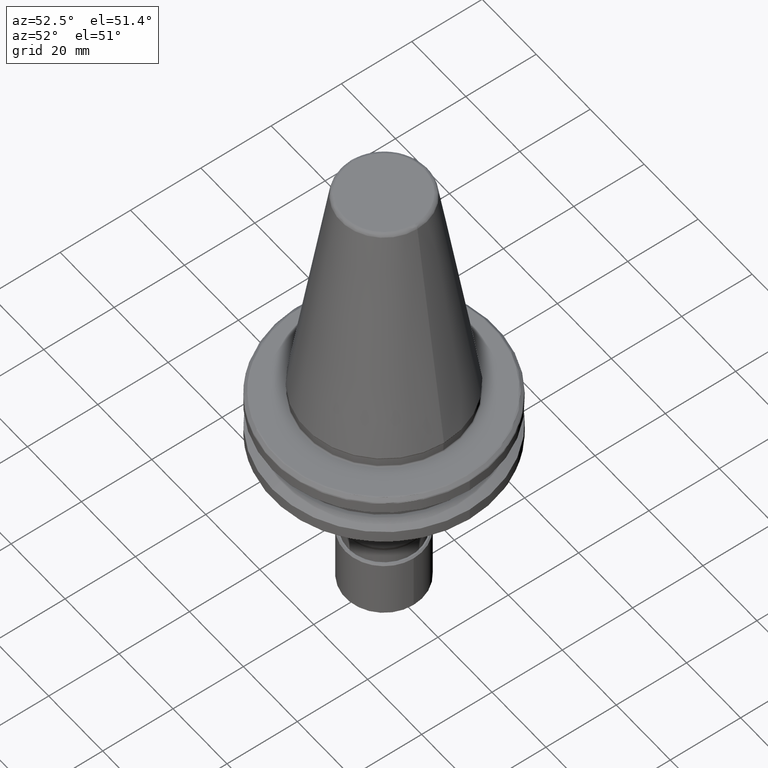
[diagram: clean part render]
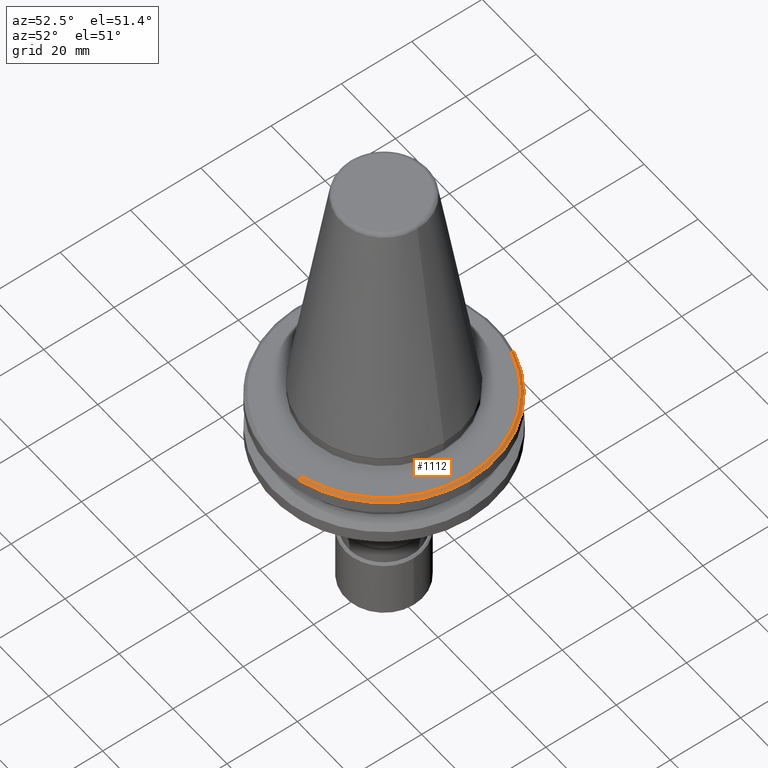
[diagram: same view with one face highlighted and labeled with its STEP entity id]
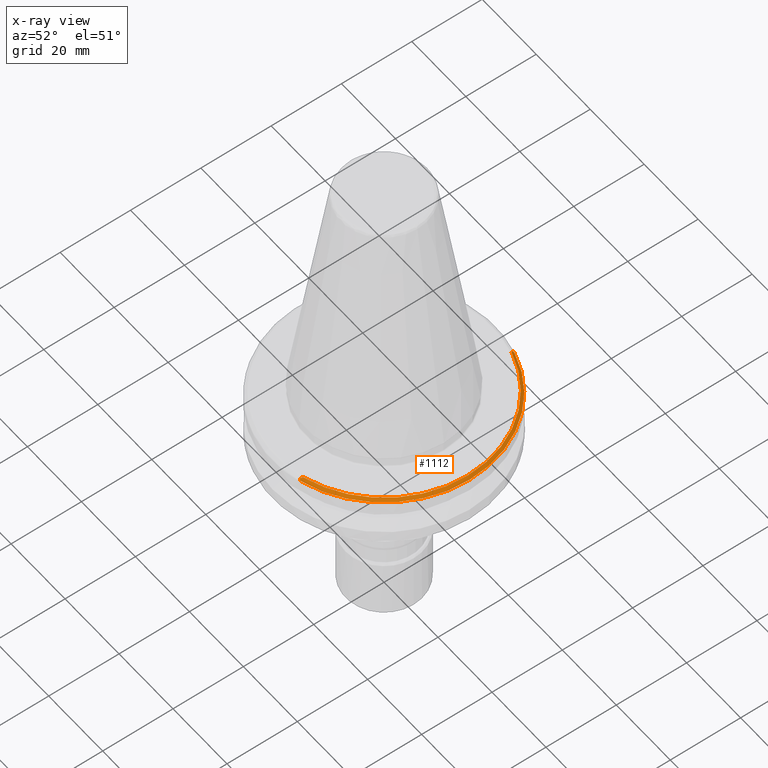
[diagram: x-ray of the same camera — body ghosted, the highlighted face saturated]
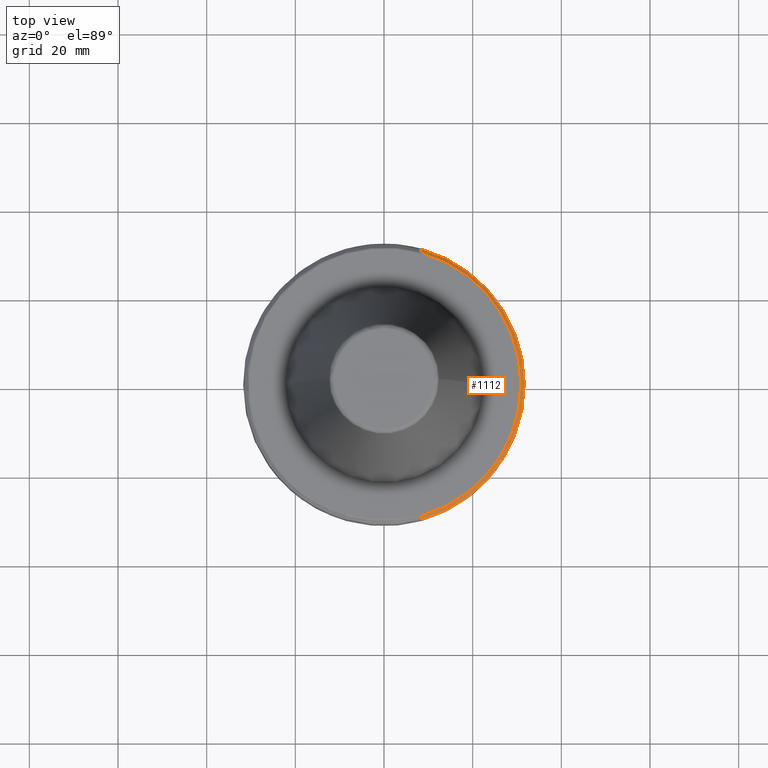
[diagram: same view with one face highlighted and labeled with its STEP entity id]
A machine part, auxiliary view. The second image highlights one B-rep face of the part: STEP entity #1112.
The next image is the same camera in x-ray: the body ghosted, the highlighted face saturated — about 0% of this face is hidden behind the body in this view.
A second angle (top view) of the same face is appended — the face is thin or edge-on in the first view.
In plain terms, the highlighted conical surface has half-angle 45 deg.
Its self-contained STEP definition (entity closure, byte-faithful):
#79 = FACE_OUTER_BOUND ( 'NONE', #3297, .T. ) ;
#170 = CARTESIAN_POINT ( 'NONE',  ( 8.632842712741323900, -29.63537456631048900, -3.317157287258676300 ) ) ;
#194 = CARTESIAN_POINT ( 'NONE',  ( 8.486468570916780900, -29.83047176759753700, -3.463531429083219300 ) ) ;
#207 = DIRECTION ( 'NONE',  ( -1.000000000000000000, 0.0000000000000000000, 3.180680361948205000E-015 ) ) ;
#275 = DIRECTION ( 'NONE',  ( 0.0000000000000000000, 0.0000000000000000000, -1.000000000000000000 ) ) ;
#321 = DIRECTION ( 'NONE',  ( 1.000000000000000000, 0.0000000000000000000, -1.264492154108390400E-016 ) ) ;
#322 = CARTESIAN_POINT ( 'NONE',  ( 8.219170450562259600, 30.18170860656226000, -3.730829549609267800 ) ) ;
#346 = VERTEX_POINT ( 'NONE', #2411 ) ;
#389 = VERTEX_POINT ( 'NONE', #2183 ) ;
#403 = ORIENTED_EDGE ( 'NONE', *, *, #2860, .F. ) ;
#410 = ORIENTED_EDGE ( 'NONE', *, *, #2192, .F. ) ;
#688 = ORIENTED_EDGE ( 'NONE', *, *, #2615, .F. ) ;
#750 = CIRCLE ( 'NONE', #1954, 31.63284271200000200 ) ;
#755 = EDGE_CURVE ( 'NONE', #2264, #2473, #2966, .T. ) ;
#806 = ORIENTED_EDGE ( 'NONE', *, *, #755, .F. ) ;
#896 = EDGE_CURVE ( 'NONE', #389, #346, #1581, .T. ) ;
#941 = CARTESIAN_POINT ( 'NONE',  ( 8.358320618073461700, 29.99959726333990800, -3.591679381926539300 ) ) ;
#1011 = EDGE_CURVE ( 'NONE', #3053, #2137, #1447, .T. ) ;
#1040 = CARTESIAN_POINT ( 'NONE',  ( 8.632842712741323900, 29.63537456631048900, -3.317157287258676300 ) ) ;
#1112 = ADVANCED_FACE ( 'NONE', ( #79 ), #1746, .T. ) ;
#1249 = CARTESIAN_POINT ( 'NONE',  ( 8.577655408265316700, -30.44766929922310800, -4.082842712282867700 ) ) ;
#1313 = VERTEX_POINT ( 'NONE', #2320 ) ;
#1322 = CARTESIAN_POINT ( 'NONE',  ( 8.505395553625890100, 30.46793370962588900, -4.082842712282867700 ) ) ;
#1328 = CARTESIAN_POINT ( 'NONE',  ( 8.505395553625890100, 30.46793370962588900, -4.082842712282867700 ) ) ;
#1437 = AXIS2_PLACEMENT_3D ( 'NONE', #2316, #2305, #1734 ) ;
#1447 = B_SPLINE_CURVE_WITH_KNOTS ( 'NONE', 3,
 ( #1040, #2382, #941, #1569 ),
 .UNSPECIFIED., .F., .F.,
 ( 4, 4 ),
 ( 0.0000000000000000000, 1.000000000000000000 ),
 .UNSPECIFIED. ) ;
#1489 = EDGE_CURVE ( 'NONE', #2942, #1313, #750, .T. ) ;
#1514 = CARTESIAN_POINT ( 'NONE',  ( 8.318145235921155800, -30.29594654182009000, -3.866953666337356500 ) ) ;
#1569 = CARTESIAN_POINT ( 'NONE',  ( 8.219170450562259600, 30.18170860656226000, -3.730829549609267800 ) ) ;
#1581 = B_SPLINE_CURVE_WITH_KNOTS ( 'NONE', 3,
 ( #1249, #2720, #1514, #1917 ),
 .UNSPECIFIED., .F., .F.,
 ( 4, 4 ),
 ( 0.0000000000000000000, 1.000000000000000000 ),
 .UNSPECIFIED. ) ;
#1613 = CARTESIAN_POINT ( 'NONE',  ( 8.338648993275288700, -30.02556897957857600, -3.611351006724711900 ) ) ;
#1694 = CARTESIAN_POINT ( 'NONE',  ( 8.189383977215841900, -30.22066620369729200, -3.760616022784158300 ) ) ;
#1734 = DIRECTION ( 'NONE',  ( 1.000000000000000000, 0.0000000000000000000, -1.264492154108390400E-016 ) ) ;
#1737 = AXIS2_PLACEMENT_3D ( 'NONE', #2350, #2551, #3271 ) ;
#1746 = CONICAL_SURFACE ( 'NONE', #1737, 30.86715728800000100, 0.7853981633974485000 ) ;
#1777 = CARTESIAN_POINT ( 'NONE',  ( 30.86715728713049200, 0.0000000000000000000, -3.317157287258680300 ) ) ;
#1806 = DIRECTION ( 'NONE',  ( 0.0000000000000000000, 0.0000000000000000000, -1.000000000000000000 ) ) ;
#1905 = DIRECTION ( 'NONE',  ( 1.198806228981637600E-016, -9.066764971771292300E-017, 1.000000000000000000 ) ) ;
#1917 = CARTESIAN_POINT ( 'NONE',  ( 8.189383977215841900, -30.22066620369729200, -3.760616022784158300 ) ) ;
#1954 = AXIS2_PLACEMENT_3D ( 'NONE', #3425, #1806, #207 ) ;
#1962 = CARTESIAN_POINT ( 'NONE',  ( 0.0000000000000000000, 0.0000000000000000000, -4.082842712000101000 ) ) ;
#1973 = CARTESIAN_POINT ( 'NONE',  ( 8.632842712741323900, -29.63537456631048900, -3.317157287258676300 ) ) ;
#2005 = ORIENTED_EDGE ( 'NONE', *, *, #2128, .F. ) ;
#2128 = EDGE_CURVE ( 'NONE', #1313, #389, #3305, .T. ) ;
#2137 = VERTEX_POINT ( 'NONE', #2270 ) ;
#2176 = CARTESIAN_POINT ( 'NONE',  ( -2.595701431573616000E-010, -1.440196751648522400E-014, -3.317157287259420200 ) ) ;
#2183 = CARTESIAN_POINT ( 'NONE',  ( 8.577655408265316700, -30.44766929922310800, -4.082842712282867700 ) ) ;
#2192 = EDGE_CURVE ( 'NONE', #346, #2264, #3301, .T. ) ;
#2264 = VERTEX_POINT ( 'NONE', #1973 ) ;
#2270 = CARTESIAN_POINT ( 'NONE',  ( 8.219170450562259600, 30.18170860656226000, -3.730829549609267800 ) ) ;
#2305 = DIRECTION ( 'NONE',  ( 1.198806228981637600E-016, 9.066764971771292300E-017, 1.000000000000000000 ) ) ;
#2316 = CARTESIAN_POINT ( 'NONE',  ( -2.595710105190995900E-010, 1.613669099246203400E-014, -3.317157287259420200 ) ) ;
#2320 = CARTESIAN_POINT ( 'NONE',  ( 31.63284271224760900, -6.488004493892014500E-009, -4.082842712282873900 ) ) ;
#2350 = CARTESIAN_POINT ( 'NONE',  ( 0.0000000000000000000, 0.0000000000000000000, -3.317157288000000200 ) ) ;
#2382 = CARTESIAN_POINT ( 'NONE',  ( 8.496211371224633900, 29.81748591731826500, -3.453788628775365900 ) ) ;
#2411 = CARTESIAN_POINT ( 'NONE',  ( 8.189383977215841900, -30.22066620369729200, -3.760616022784158300 ) ) ;
#2473 = VERTEX_POINT ( 'NONE', #1777 ) ;
#2551 = DIRECTION ( 'NONE',  ( 0.0000000000000000000, 7.024956411564353400E-018, -1.000000000000000000 ) ) ;
#2615 = EDGE_CURVE ( 'NONE', #2473, #3053, #2750, .T. ) ;
#2691 = ORIENTED_EDGE ( 'NONE', *, *, #1011, .F. ) ;
#2720 = CARTESIAN_POINT ( 'NONE',  ( 8.447569045237180800, -30.37161423933519100, -3.974362562558542600 ) ) ;
#2750 = CIRCLE ( 'NONE', #1437, 30.86715728734562000 ) ;
#2760 = CARTESIAN_POINT ( 'NONE',  ( 8.410060840308348800, 30.37259899630834800, -3.965385321328242600 ) ) ;
#2769 = ORIENTED_EDGE ( 'NONE', *, *, #896, .F. ) ;
#2860 = EDGE_CURVE ( 'NONE', #2137, #2942, #3061, .T. ) ;
#2915 = AXIS2_PLACEMENT_3D ( 'NONE', #1962, #275, #3341 ) ;
#2942 = VERTEX_POINT ( 'NONE', #1322 ) ;
#2949 = AXIS2_PLACEMENT_3D ( 'NONE', #2176, #1905, #321 ) ;
#2966 = CIRCLE ( 'NONE', #2949, 30.86715728734562000 ) ;
#3053 = VERTEX_POINT ( 'NONE', #3450 ) ;
#3061 = B_SPLINE_CURVE_WITH_KNOTS ( 'NONE', 3,
 ( #322, #3260, #2760, #1328 ),
 .UNSPECIFIED., .F., .F.,
 ( 4, 4 ),
 ( 0.0000000000000000000, 0.0005364353497079963200 ),
 .UNSPECIFIED. ) ;
#3260 = CARTESIAN_POINT ( 'NONE',  ( 8.314653340938516400, 30.27719149693851700, -3.848045971800238400 ) ) ;
#3271 = DIRECTION ( 'NONE',  ( 0.0000000000000000000, 1.000000000000000000, 1.404991282312870100E-017 ) ) ;
#3297 = EDGE_LOOP ( 'NONE', ( #410, #2769, #2005, #3363, #403, #2691, #688, #806 ) ) ;
#3301 = B_SPLINE_CURVE_WITH_KNOTS ( 'NONE', 3,
 ( #1694, #1613, #194, #170 ),
 .UNSPECIFIED., .F., .F.,
 ( 4, 4 ),
 ( 0.0000000000000000000, 1.000000000000000000 ),
 .UNSPECIFIED. ) ;
#3305 = CIRCLE ( 'NONE', #2915, 31.63284271200000200 ) ;
#3341 = DIRECTION ( 'NONE',  ( -1.000000000000000000, 0.0000000000000000000, 3.180680361948205000E-015 ) ) ;
#3363 = ORIENTED_EDGE ( 'NONE', *, *, #1489, .F. ) ;
#3425 = CARTESIAN_POINT ( 'NONE',  ( 0.0000000000000000000, 0.0000000000000000000, -4.082842712000101000 ) ) ;
#3450 = CARTESIAN_POINT ( 'NONE',  ( 8.632842712741323900, 29.63537456631048900, -3.317157287258676300 ) ) ;